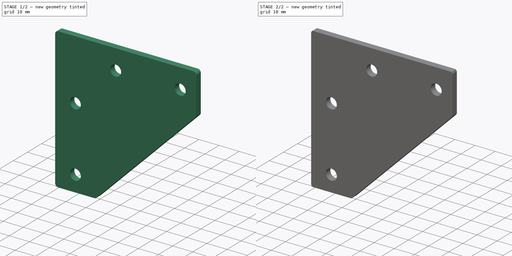
[diagram: build sequence overview — one tinted view per stage of 2, left to right]
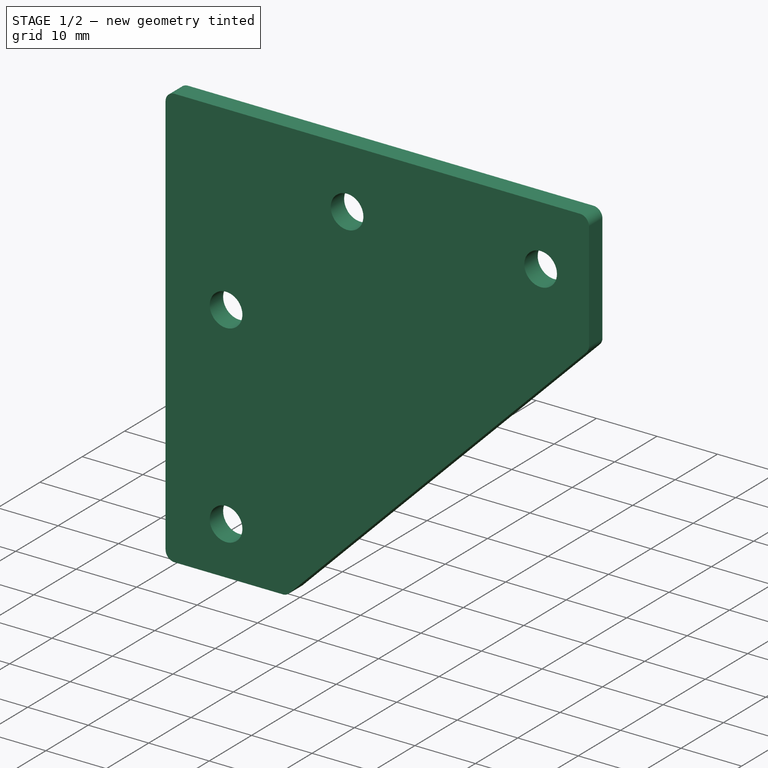
[diagram: stage 1 of 2 — iso view after this stage's code; geometry added in this stage tinted green]
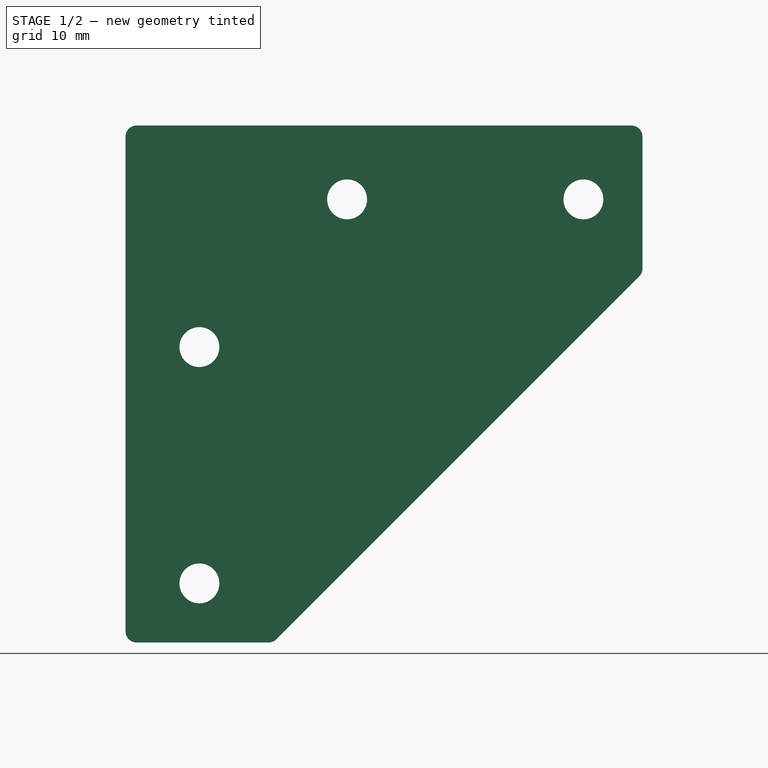
[diagram: stage 1 of 2 — front view after this stage's code; geometry added in this stage tinted green]
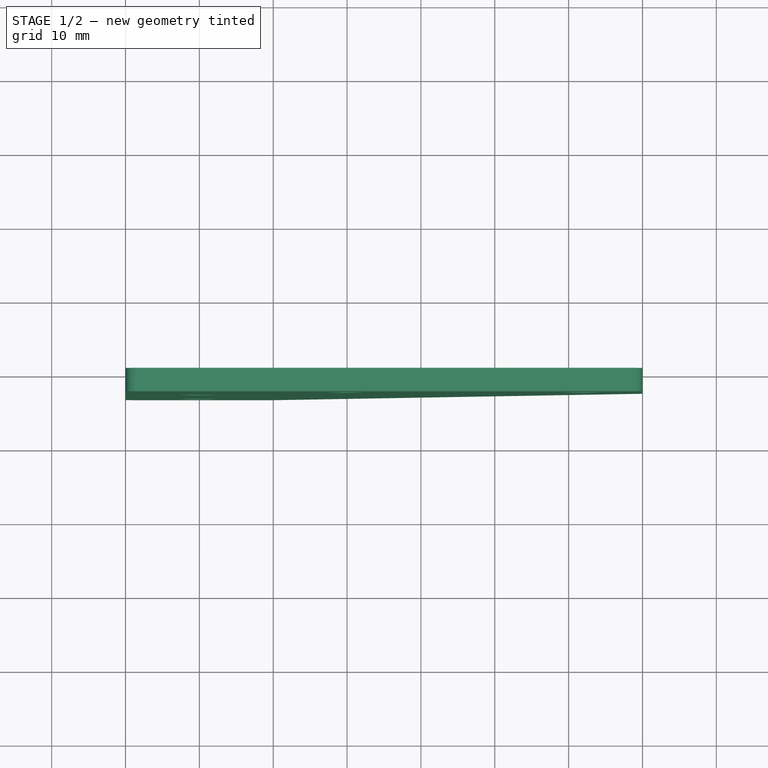
[diagram: stage 1 of 2 — top view after this stage's code; geometry added in this stage tinted green]
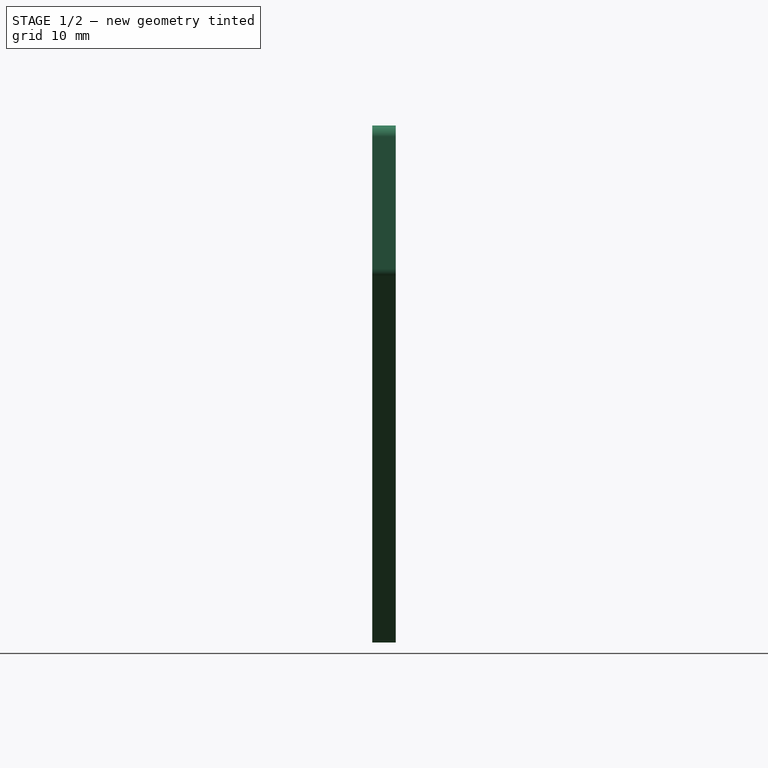
[diagram: stage 1 of 2 — right view after this stage's code; geometry added in this stage tinted green]
FCSTD DOCUMENT  (FreeCAD 0.18R4 (GitTag))
Label: [100065] Sheet Metal, Corner Bracket, Syn1
License: CreativeCommons Attribution-ShareAlike
LicenseURL: http://creativecommons.org/licenses/by-sa/4.0/
objects: Drawing::FeatureView×32, Drawing::FeatureViewPython×9, Drawing::FeatureViewPart×2, Part::FeaturePython×1, Sketcher::SketchObject×1, PartDesign::Pad×1, PartDesign::Fillet×1, PartDesign::Body×1, Drawing::FeaturePage×1
note: 6 computed .brp shape members not serialized (recipe doc carries the construction recipe); baked Part::Feature solids carry a one-line shape summary decoded from their .brp

FEATURE [Sketcher::SketchObject] Sketch
  MapMode = 5
  Placement = pos=(0,0,0) rot=(1,0,0;1.5708rad)
  Support = -> [XZ_Plane]
  sketch-geometry (11):
    g0: LineSegment StartX=0 StartY=70 StartZ=0 EndX=70 EndY=70 EndZ=0
    g1: LineSegment StartX=70 StartY=70 StartZ=0 EndX=70 EndY=50 EndZ=0
    g2: LineSegment StartX=70 StartY=50 StartZ=0 EndX=20 EndY=0 EndZ=0
    g3: LineSegment StartX=20 StartY=0 StartZ=0 EndX=0 EndY=0 EndZ=0
    g4: LineSegment StartX=0 StartY=0 StartZ=0 EndX=0 EndY=70 EndZ=0
    g5: Circle CenterX=30 CenterY=60 CenterZ=0 NormalX=0 NormalY=0 NormalZ=1 AngleXU=0 Radius=2.7
    g6: Circle CenterX=62 CenterY=60 CenterZ=0 NormalX=0 NormalY=0 NormalZ=1 AngleXU=0 Radius=2.7
    g7: Circle CenterX=10 CenterY=40 CenterZ=0 NormalX=0 NormalY=0 NormalZ=1 AngleXU=0 Radius=2.7
    g8: Circle CenterX=10 CenterY=8 CenterZ=0 NormalX=0 NormalY=0 NormalZ=1 AngleXU=0 Radius=2.7
    g9: LineSegment [constr] StartX=62 StartY=60 StartZ=0 EndX=30 EndY=60 EndZ=0
    g10: LineSegment [constr] StartX=10 StartY=40 StartZ=0 EndX=10 EndY=8 EndZ=0
  constraints (30):
    c: PointOnObject(g0,g-2)
    c: Horizontal(g0)
    c: Coincident(g0,g1)
    c: Vertical(g1)
    c: Coincident(g1,g2)
    c: PointOnObject(g2,g-1)
    c: Coincident(g2,g3)
    c: Coincident(g3,g-1)
    c: Coincident(g3,g4)
    c: Coincident(g4,g0)
    c: DistanceY(g4,g4) = 70
    c: Equal(g0,g4)
    c: DistanceY(g1,g1) = 20
    c: DistanceX(g3,g3) = 20
    c: Coincident(g9,g6)
    c: Coincident(g9,g5)
    c: Horizontal(g9)
    c: Coincident(g10,g7)
    c: Coincident(g10,g8)
    c: Vertical(g10)
    c: DistanceX(g7) = 10
    c: DistanceY(g7) = 40
    c: DistanceY(g10,g10) = 32
    c: DistanceX(g0,g5) = 30
    c: DistanceY(g5,g0) = 10
    c: Equal(g9,g10)
    c: Equal(g5,g6)
    c: Equal(g6,g7)
    c: Equal(g7,g8)
    c: Radius(g6) = 2.7
FEATURE [PartDesign::Pad] Pad
  Length = 3.17
  Length2 = 100
  Placement = pos=(0,0,0) rot=(1,0,0;1.5708rad)
  Profile = -> Sketch
  Type = 0
FEATURE [Drawing::FeatureView] dimStack015
  Rotation = 0
  ViewResult = <g> <line x1="227.267000" y1="45.378680" x2="227.267000" y2="37.241451" style="stroke:rgb(0,0,255);stroke-width:0.10" />\n<line x1="230.437000" y1="45.378680" x2="230.437000" y2="37.241451" style="stroke:rgb(0,0,255);stroke-width:0.10" />\n<line x1="227.267000" y1="38.241451" x2="230.437000" y2="38.241451" style="stroke:rgb(0,0,255);stroke-width:0.10" />\n<polygon points="227.267000,38.241451 224.267000,37.241451 223.267000,38.241451 224.267000,39.241451" style="fill:rgb(0,0,255);stroke:rgb(0,0,255);stroke-width:0" />\n<polygon points="230.437000,38.241451 233.437000,39.241451 234.437000,38.241451 233.437000,37.241451" style="fill:rgb(0,0,255);stroke:rgb(0,0,255);stroke-width:0" />\n<text x="228.852000" y="36.241451" font-family="inherit" font-size="3" fill="rgb(0,0,255)" text-anchor="middle"  >3.175</text> </g> 
  Visible = true
  X = 0
  Y = 0
FEATURE [Drawing::FeatureView] centerLines004
  Rotation = 0
  ViewResult = <g transform="scale(1.000000,1.000000)" stroke="rgb(0,0,255)"  stroke-width="0.320000" > <path d="M 113.233300,106.500000 L 113.233300,107.671091 "/>\n<path d="M 113.233300,106.500000 L 114.358736,106.500000 "/>\n<path d="M 113.233300,106.500000 L 113.233300,104.996033 "/>\n<path d="M 113.233300,106.500000 L 111.182105,106.500000 "/> </g> 
  Visible = true
  X = 0
  Y = 0
FEATURE [Drawing::FeatureView] centerLines005
  Rotation = 0
  ViewResult = <g transform="scale(1.000000,1.000000)" stroke="rgb(0,0,255)"  stroke-width="0.320000" > <path d="M 145.233300,106.500000 L 145.233300,108.005473 "/>\n<path d="M 145.233300,106.500000 L 146.626625,106.500000 "/>\n<path d="M 145.233300,106.500000 L 145.233300,104.327268 "/>\n<path d="M 145.233300,106.500000 L 143.784376,106.500000 "/> </g> 
  Visible = true
  X = 0
  Y = 0
FEATURE [Drawing::FeatureView] centerLines008
  Rotation = 0
  ViewResult = <g transform="scale(1.000000,1.000000)" stroke="rgb(0,0,255)"  stroke-width="0.320000" > <path d="M 93.233300,54.500000 L 93.233300,56.343412 "/>\n<path d="M 93.233300,54.500000 L 95.131756,54.500000 "/>\n<path d="M 93.233300,54.500000 L 93.233300,53.166781 "/>\n<path d="M 93.233300,54.500000 L 92.122315,54.500000 "/> </g> 
  Visible = true
  X = 0
  Y = 0
FEATURE [Drawing::FeatureView] centerLines009
  Rotation = 0
  ViewResult = <g transform="scale(1.000000,1.000000)" stroke="rgb(0,0,255)"  stroke-width="0.320000" > <path d="M 93.233300,86.500000 L 93.233300,87.608155 "/>\n<path d="M 93.233300,86.500000 L 94.462991,86.500000 "/>\n<path d="M 93.233300,86.500000 L 93.233300,84.933096 "/>\n<path d="M 93.233300,86.500000 L 91.119168,86.500000 "/> </g> 
  Visible = true
  X = 0
  Y = 0
FEATURE [Drawing::FeatureView] centerLines010
  Rotation = 0
  ViewResult = <g transform="scale(1.000000,1.000000)" stroke="rgb(0,0,255)"  stroke-width="0.320000" > <path d="M 93.233300,54.500000 L 93.233300,57.500000 M 93.233300,59.500000 L 93.233300,65.500000 M 93.233300,67.500000 L 93.233300,70.500000 M 93.233300,72.500000 L 93.233300,78.500000 M 93.233300,80.500000 L 93.233300,83.500000 M 93.233300,85.500000 L 93.233300,86.772199 "/>\n<path d="M 93.233300,54.500000 L 93.233300,57.500000 M 93.233300,59.500000 L 93.233300,65.500000 M 93.233300,67.500000 L 93.233300,70.500000 M 93.233300,72.500000 L 93.233300,78.500000 M 93.233300,80.500000 L 93.233300,83.500000 M 93.233300,85.500000 L 93.233300,86.437817 "/> </g> 
  Visible = true
  X = 0
  Y = 0
FEATURE [Drawing::FeatureView] centerLines011
  Rotation = 0
  ViewResult = <g transform="scale(1.000000,1.000000)" stroke="rgb(0,0,255)"  stroke-width="0.320000" > <path d="M 113.233300,106.500000 L 116.233300,106.500000 M 118.233300,106.500000 L 124.233300,106.500000 M 126.233300,106.500000 L 129.233300,106.500000 M 131.233300,106.500000 L 137.233300,106.500000 M 139.233300,106.500000 L 142.233300,106.500000 M 144.233300,106.500000 L 144.954714,106.500000 "/>\n<path d="M 113.233300,106.500000 L 116.233300,106.500000 M 118.233300,106.500000 L 124.233300,106.500000 M 126.233300,106.500000 L 129.233300,106.500000 M 131.233300,106.500000 L 137.233300,106.500000 M 139.233300,106.500000 L 142.233300,106.500000 M 144.233300,106.500000 L 144.787523,106.500000 "/> </g> 
  Visible = true
  X = 0
  Y = 0
FEATURE [Drawing::FeatureView] dimText001
  Rotation = 0
  ViewResult = <g> <text x="224.174023" y="32.703034" font-family="inherit" font-size="3" fill="rgb(0,0,0)" text-anchor="inherit" transform="rotate(0.000000 224.174023,32.703034)" >[.125"]</text> </g>
  Visible = true
  X = 0
  Y = 0
FEATURE [Drawing::FeatureView] dimText002
  Rotation = 0
  ViewResult = <g> <text x="170.635992" y="122.900112" font-family="inherit" font-size="3" fill="rgb(0,0,0)" text-anchor="inherit" transform="rotate(0.000000 170.635992,122.900112)" >Notes</text> </g>
  Visible = true
  X = 0
  Y = 0
FEATURE [Drawing::FeatureView] dimText003
  Rotation = 0
  ViewResult = <g> <text x="160.086626" y="126.856124" font-family="inherit" font-size="3" fill="rgb(0,0,0)" text-anchor="inherit" transform="rotate(0.000000 160.086626,126.856124)" >1. Parts must be RoHS compliant</text> </g>
  Visible = true
  X = 0
  Y = 0
FEATURE [Drawing::FeatureView] dimText004
  Rotation = 0
  ViewResult = <g> <text x="160.086626" y="130.284668" font-family="inherit" font-size="3" fill="rgb(0,0,0)" text-anchor="inherit" transform="rotate(0.000000 160.086626,130.284668)" >2. Material: 5052 H-32 Aluminum</text> </g>
  Visible = true
  X = 0
  Y = 0
FEATURE [Drawing::FeatureView] dim001
  Rotation = 0
  ViewResult = <g>  <circle cx ="93.233300" cy ="54.500000" r="0.250000" stroke="none" fill="rgb(0,0,255)" /> \n<line x1="73.541318" y1="37.129981" x2="95.258131" y2="56.286074" style="stroke:rgb(0,0,255);stroke-width:0.10" />\n<polygon points="91.208469,52.713926 89.620167,49.979461 88.208721,50.067890 88.297149,51.479336" style="fill:rgb(0,0,255);stroke:rgb(0,0,255);stroke-width:0" />\n<polygon points="95.258131,56.286074 96.846433,59.020539 98.257879,58.932110 98.169451,57.520664" style="fill:rgb(0,0,255);stroke:rgb(0,0,255);stroke-width:0" />\n<line x1="73.541318" y1="37.129981" x2="63.480290" y2="37.129981" style="stroke:rgb(0,0,255);stroke-width:0.10" />\n<text x="68.510804" y="35.129981" font-family="inherit" font-size="3" fill="rgb(0,0,255)" text-anchor="middle"  >Ø5.40 thru x4</text> </g>
  Visible = true
  X = 0
  Y = 0
FEATURE [PartDesign::Fillet] Fillet
  Base = -> Pad [Edge1,Edge11,Edge8,Edge5,Edge2]
  BaseFeature = -> Pad
  Placement = pos=(0,0,0) rot=(1,0,0;1.5708rad)
  Radius = 1.5
FEATURE [PartDesign::Body] Body
  Group = -> [Sketch,Pad,Fillet]
  Origin = -> Origin
  Tip = -> Fillet
FEATURE [Drawing::FeatureViewPart] Ortho  label="Ortho_0_0"
  Direction = (0,1,0)
  HiddenWidth = 0.15
  LineWidth = 0.35
  Rotation = 90
  ShowHiddenLines = false
  ShowSmoothLines = false
  Source = -> Body
  Tolerance = 0.05
  ViewResult = <g id="Ortho_0_0"\n   transform="rotate(90,83.2333,46.5) translate(83.2333,46.5) scale(1,1)"\n  >\n<g   fill="none"\n   stroke="rgb(0, 0, 0)"\n   stroke-linecap="butt"\n   stroke-linejoin="miter"\n   stroke-width="0.350000"\n   transform="scale(1,-1)"\n  >\n<path id= "1" d=" M 70 1.5 L 70 68.5 " />\n<path d="M70 1.5 A1.5 1.5 0 0 0 68.5 -2.22045e-16" /><path d="M70 68.5 A1.5 1.5 0 0 1 68.5 70" /><path id= "4" d=" M 1.5 0 L 68.5 0 " />\n<path id= "5" d=" M 68.5 70 L 50.6213 70 " />\n<path d="M-2.22045e-16 1.5 A1.5 1.5 0 0 1 1.5 -2.22045e-16" /><path d="M50.6213 70 A1.5 1.5 0 0 1 49.5607 69.5607" /><path id= "8" d=" M 0 19.3787 L 0 1.5 " />\n<path id= "9" d=" M 49.5607 69.5607 L 0.43934 20.4393 " />\n<path d="M0.43934 20.4393 A1.5 1.5 0 0 1 -1.42109e-14 19.3787" /><circle cx ="8" cy ="10" r ="2.7" /><circle cx ="60" cy ="62" r ="2.7" /><circle cx ="40" cy ="10" r ="2.7" /><circle cx ="60" cy ="30" r ="2.7" /></g>\n</g>
  Visible = true
  X = 83.2333
  Y = 46.5
FEATURE [Drawing::FeatureViewPart] Ortho001  label="Ortho_1_0"
  Direction = (1,0,0)
  HiddenWidth = 0.15
  LineWidth = 0.35
  Rotation = 90
  ShowHiddenLines = false
  ShowSmoothLines = false
  Source = -> Body
  Tolerance = 0.05
  ViewResult = <g id="Ortho_1_0"\n   transform="rotate(90,227.267,46.5) translate(227.267,46.5) scale(1,1)"\n  >\n<g   fill="none"\n   stroke="rgb(0, 0, 0)"\n   stroke-linecap="butt"\n   stroke-linejoin="miter"\n   stroke-width="0.350000"\n   transform="scale(1,-1)"\n  >\n<path id= "1" d=" M 70 7.2431e-12 L 70 3.17 " />\n<path d="M70,7.2431e-12 Q69.9953,7.24261e-12 69.9906,7.24212e-12  Q69.9765,7.24066e-12 69.9624,7.2392e-12  Q69.9391,7.23679e-12 69.9158,7.23439e-12  Q69.8836,7.23105e-12 69.8515,7.22772e-12  Q69.8108,7.22351e-12 69.7701,7.21931e-12  Q69.7214,7.21427e-12 69.6727,7.20923e-12  Q69.6167,7.20343e-12 69.5607,7.19764e-12  Q69.4979,7.19115e-12 69.4352,7.18466e-12  Q69.3666,7.17756e-12 69.298,7.17046e-12  Q69.2244,7.16285e-12 69.1508,7.15523e-12  Q68.9972,7.13933e-12 68.8338,7.12242e-12  Q68.6685,7.10533e-12 68.5,7.08789e-12 " /><path id= "3" d=" M 68.5 7.08789e-12 L 50.6213 5.23793e-12 " />\n<path d="M50.6213,5.23793e-12 C50.228,5.19723e-12 49.8382,5.1569e-12 49.5607,5.12818e-12 " /><path id= "5" d=" M 49.5607 5.12818e-12 L 0.43934 4.54597e-14 " />\n<path d="M0.43934,4.54597e-14 C0.160619,1.66197e-14 -0.000830723,-8.59572e-17 -1.42109e-14,-1.41364e-27 " /><path d="M70,3.17 Q69.9953,3.17 69.9906,3.17  Q69.9765,3.17 69.9624,3.17  Q69.9391,3.17 69.9158,3.17  Q69.8836,3.17 69.8515,3.17  Q69.8108,3.17 69.7701,3.17  Q69.7214,3.17 69.6727,3.17  Q69.6167,3.17 69.5607,3.17  Q69.4979,3.17 69.4352,3.17  Q69.3666,3.17 69.298,3.17  Q69.2244,3.17 69.1508,3.17  Q68.9972,3.17 68.8338,3.17  Q68.6685,3.17 68.5,3.17 " /><path id= "8" d=" M 68.5 3.17 L 50.6213 3.17 " />\n<path d="M50.6213,3.17 C50.228,3.17 49.8382,3.17 49.5607,3.17 " /><path id= "10" d=" M 49.5607 3.17 L 0.43934 3.17 " />\n<path d="M0.43934,3.17 C0.160619,3.17 -0.000830723,3.17 -3.42171e-13,3.17 " /><path id= "12" d=" M -1.42109e-14 -1.47044e-27 L -3.4222e-13 3.17 " />\n</g>\n</g>
  Visible = true
  X = 227.267
  Y = 46.5
FEATURE [Drawing::FeatureView] dim002
  Rotation = 0
  ViewResult = <g>  <circle cx ="84.733300" cy ="48.000000" r="0.125000" stroke="none" fill="rgb(0,0,255)" /> \n<line x1="48.151047" y1="38.520837" x2="84.733300" y2="48.000000" style="stroke:rgb(0,0,255);stroke-width:0.25" />\n<polygon points="83.281255,47.623747 81.596031,46.154047 81.345196,47.122077 81.094360,48.090107" style="fill:rgb(0,0,255);stroke:rgb(0,0,255);stroke-width:0" />\n<line x1="48.151047" y1="38.520837" x2="39.122726" y2="38.520837" style="stroke:rgb(0,0,255);stroke-width:0.25" />\n<text x="43.636886" y="36.520837" font-family="inherit" font-size="3" fill="rgb(0,0,255)" text-anchor="middle"  >5X R1.5</text> </g>
  Visible = true
  X = 0
  Y = 0
FEATURE [Drawing::FeatureView] dimStack002
  Rotation = 0
  ViewResult = <g> <line x1="149.733299" y1="97.121320" x2="64.831509" y2="97.121320" style="stroke:rgb(0,0,255);stroke-width:0.25" />\n<line x1="149.733299" y1="116.500000" x2="64.831509" y2="116.500000" style="stroke:rgb(0,0,255);stroke-width:0.25" />\n<line x1="65.831509" y1="97.121320" x2="65.831509" y2="116.500000" style="stroke:rgb(0,0,255);stroke-width:0.25" />\n<polygon points="65.831509,97.121320 64.831509,99.121320 65.831509,99.121320 66.831509,99.121320" style="fill:rgb(0,0,255);stroke:rgb(0,0,255);stroke-width:0" />\n<polygon points="65.831509,116.500000 66.831509,114.500000 65.831509,114.500000 64.831509,114.500000" style="fill:rgb(0,0,255);stroke:rgb(0,0,255);stroke-width:0" />\n<text x="63.831509" y="106.810660" font-family="inherit" font-size="3" fill="rgb(0,0,255)" text-anchor="middle" transform="rotate(-90.000000 63.831509,106.810660)" >19.4 </text> </g> 
  Visible = true
  X = 0
  Y = 0
FEATURE [Drawing::FeatureView] dimStack008
  Rotation = 0
  ViewResult = <g> <line x1="82.733300" y1="116.500000" x2="58.779740" y2="116.500000" style="stroke:rgb(0,0,255);stroke-width:0.25" />\n<line x1="88.533299" y1="86.500000" x2="58.779740" y2="86.500000" style="stroke:rgb(0,0,255);stroke-width:0.25" />\n<line x1="59.779740" y1="116.500000" x2="59.779740" y2="86.500000" style="stroke:rgb(0,0,255);stroke-width:0.25" />\n<polygon points="59.779740,116.500000 60.779740,114.500000 59.779740,114.500000 58.779740,114.500000" style="fill:rgb(0,0,255);stroke:rgb(0,0,255);stroke-width:0" />\n<polygon points="59.779740,86.500000 58.779740,88.500000 59.779740,88.500000 60.779740,88.500000" style="fill:rgb(0,0,255);stroke:rgb(0,0,255);stroke-width:0" />\n<text x="57.779740" y="101.500000" font-family="inherit" font-size="3" fill="rgb(0,0,255)" text-anchor="middle" transform="rotate(-90.000000 57.779740,101.500000)" >30.0 </text> </g> 
  Visible = true
  X = 0
  Y = 0
FEATURE [Drawing::FeatureView] dimStack009
  Rotation = 0
  ViewResult = <g> <line x1="82.733300" y1="116.500000" x2="52.625943" y2="116.500000" style="stroke:rgb(0,0,255);stroke-width:0.25" />\n<line x1="88.533299" y1="54.500000" x2="52.625943" y2="54.500000" style="stroke:rgb(0,0,255);stroke-width:0.25" />\n<line x1="53.625943" y1="116.500000" x2="53.625943" y2="54.500000" style="stroke:rgb(0,0,255);stroke-width:0.25" />\n<polygon points="53.625943,116.500000 54.625943,114.500000 53.625943,114.500000 52.625943,114.500000" style="fill:rgb(0,0,255);stroke:rgb(0,0,255);stroke-width:0" />\n<polygon points="53.625943,54.500000 52.625943,56.500000 53.625943,56.500000 54.625943,56.500000" style="fill:rgb(0,0,255);stroke:rgb(0,0,255);stroke-width:0" />\n<text x="51.625943" y="85.500000" font-family="inherit" font-size="3" fill="rgb(0,0,255)" text-anchor="middle" transform="rotate(-90.000000 51.625943,85.500000)" >62.0 </text> </g> 
  Visible = true
  X = 0
  Y = 0
FEATURE [Drawing::FeatureView] dimStack010
  Rotation = 0
  ViewResult = <g> <line x1="82.733300" y1="116.500000" x2="46.472146" y2="116.500000" style="stroke:rgb(0,0,255);stroke-width:0.25" />\n<line x1="81.233299" y1="48.000000" x2="46.472146" y2="48.000000" style="stroke:rgb(0,0,255);stroke-width:0.25" />\n<line x1="47.472146" y1="116.500000" x2="47.472146" y2="48.000000" style="stroke:rgb(0,0,255);stroke-width:0.25" />\n<polygon points="47.472146,116.500000 48.472146,114.500000 47.472146,114.500000 46.472146,114.500000" style="fill:rgb(0,0,255);stroke:rgb(0,0,255);stroke-width:0" />\n<polygon points="47.472146,48.000000 46.472146,50.000000 47.472146,50.000000 48.472146,50.000000" style="fill:rgb(0,0,255);stroke:rgb(0,0,255);stroke-width:0" />\n<text x="45.472146" y="82.250000" font-family="inherit" font-size="3" fill="rgb(0,0,255)" text-anchor="middle" transform="rotate(-90.000000 45.472146,82.250000)" >2X 68.5 </text> </g> 
  Visible = true
  X = 0
  Y = 0
FEATURE [Drawing::FeatureView] dimStack001
  Rotation = 0
  ViewResult = <g> <line x1="83.233300" y1="117.000000" x2="83.233300" y2="123.856156" style="stroke:rgb(0,0,255);stroke-width:0.25" />\n<line x1="93.233300" y1="91.200001" x2="93.233300" y2="123.856156" style="stroke:rgb(0,0,255);stroke-width:0.25" />\n<line x1="83.233300" y1="122.856156" x2="93.233300" y2="122.856156" style="stroke:rgb(0,0,255);stroke-width:0.25" />\n<polygon points="83.233300,122.856156 85.233300,123.856156 85.233300,122.856156 85.233300,121.856156" style="fill:rgb(0,0,255);stroke:rgb(0,0,255);stroke-width:0" />\n<polygon points="93.233300,122.856156 91.233300,121.856156 91.233300,122.856156 91.233300,123.856156" style="fill:rgb(0,0,255);stroke:rgb(0,0,255);stroke-width:0" />\n<text x="88.233300" y="120.856156" font-family="inherit" font-size="3" fill="rgb(0,0,255)" text-anchor="middle" transform="rotate(0.000000 88.233300,120.856156)" >10.0 </text> </g> 
  Visible = true
  X = 0
  Y = 0
FEATURE [Drawing::FeatureView] dimStack003
  Rotation = 0
  ViewResult = <g> <line x1="82.733300" y1="116.500000" x2="75.043345" y2="116.500000" style="stroke:rgb(0,0,255);stroke-width:0.25" />\n<line x1="108.533299" y1="106.500000" x2="75.043345" y2="106.500000" style="stroke:rgb(0,0,255);stroke-width:0.25" />\n<line x1="76.043345" y1="116.500000" x2="76.043345" y2="106.500000" style="stroke:rgb(0,0,255);stroke-width:0.25" />\n<polygon points="76.043345,116.500000 77.043345,114.500000 76.043345,114.500000 75.043345,114.500000" style="fill:rgb(0,0,255);stroke:rgb(0,0,255);stroke-width:0" />\n<polygon points="76.043345,106.500000 75.043345,108.500000 76.043345,108.500000 77.043345,108.500000" style="fill:rgb(0,0,255);stroke:rgb(0,0,255);stroke-width:0" />\n<text x="74.043345" y="111.500000" font-family="inherit" font-size="3" fill="rgb(0,0,255)" text-anchor="middle" transform="rotate(-90.000000 74.043345,111.500000)" >10.0 </text> </g> 
  Visible = true
  X = 0
  Y = 0
FEATURE [Drawing::FeatureView] dimStack004
  Rotation = 0
  ViewResult = <g> <line x1="83.233300" y1="117.000000" x2="83.233300" y2="136.163749" style="stroke:rgb(0,0,255);stroke-width:0.25" />\n<line x1="113.233300" y1="111.200001" x2="113.233300" y2="136.163749" style="stroke:rgb(0,0,255);stroke-width:0.25" />\n<line x1="83.233300" y1="135.163749" x2="113.233300" y2="135.163749" style="stroke:rgb(0,0,255);stroke-width:0.25" />\n<polygon points="83.233300,135.163749 85.233300,136.163749 85.233300,135.163749 85.233300,134.163749" style="fill:rgb(0,0,255);stroke:rgb(0,0,255);stroke-width:0" />\n<polygon points="113.233300,135.163749 111.233300,134.163749 111.233300,135.163749 111.233300,136.163749" style="fill:rgb(0,0,255);stroke:rgb(0,0,255);stroke-width:0" />\n<text x="98.233300" y="133.163749" font-family="inherit" font-size="3" fill="rgb(0,0,255)" text-anchor="middle" transform="rotate(0.000000 98.233300,133.163749)" >30.0 </text> </g> 
  Visible = true
  X = 0
  Y = 0
FEATURE [Drawing::FeatureView] dimStack011
  Rotation = 0
  ViewResult = <g> <line x1="83.233300" y1="117.000000" x2="83.233300" y2="143.855995" style="stroke:rgb(0,0,255);stroke-width:0.25" />\n<line x1="145.233300" y1="111.200001" x2="145.233300" y2="143.855995" style="stroke:rgb(0,0,255);stroke-width:0.25" />\n<line x1="83.233300" y1="142.855995" x2="145.233300" y2="142.855995" style="stroke:rgb(0,0,255);stroke-width:0.25" />\n<polygon points="83.233300,142.855995 85.233300,143.855995 85.233300,142.855995 85.233300,141.855995" style="fill:rgb(0,0,255);stroke:rgb(0,0,255);stroke-width:0" />\n<polygon points="145.233300,142.855995 143.233300,141.855995 143.233300,142.855995 143.233300,143.855995" style="fill:rgb(0,0,255);stroke:rgb(0,0,255);stroke-width:0" />\n<text x="114.233300" y="140.855995" font-family="inherit" font-size="3" fill="rgb(0,0,255)" text-anchor="middle" transform="rotate(0.000000 114.233300,140.855995)" >62.0 </text> </g> 
  Visible = true
  X = 0
  Y = 0
FEATURE [Drawing::FeatureView] dimStack005
  Rotation = 0
  ViewResult = <g> <line x1="83.233300" y1="117.000000" x2="83.233300" y2="150.449349" style="stroke:rgb(0,0,255);stroke-width:0.25" />\n<line x1="151.733300" y1="117.000001" x2="151.733300" y2="150.449349" style="stroke:rgb(0,0,255);stroke-width:0.25" />\n<line x1="83.233300" y1="149.449349" x2="151.733300" y2="149.449349" style="stroke:rgb(0,0,255);stroke-width:0.25" />\n<polygon points="83.233300,149.449349 85.233300,150.449349 85.233300,149.449349 85.233300,148.449349" style="fill:rgb(0,0,255);stroke:rgb(0,0,255);stroke-width:0" />\n<polygon points="151.733300,149.449349 149.733300,148.449349 149.733300,149.449349 149.733300,150.449349" style="fill:rgb(0,0,255);stroke:rgb(0,0,255);stroke-width:0" />\n<text x="117.483300" y="147.449349" font-family="inherit" font-size="3" fill="rgb(0,0,255)" text-anchor="middle"  >2X 68.5 </text> </g> 
  Visible = true
  X = 0
  Y = 0
FEATURE [Drawing::FeatureView] dimStack007
  Rotation = 0
  ViewResult = <g> <line x1="83.233300" y1="117.000000" x2="83.233300" y2="156.603146" style="stroke:rgb(0,0,255);stroke-width:0.25" />\n<line x1="153.233300" y1="117.000000" x2="153.233300" y2="156.603146" style="stroke:rgb(0,0,255);stroke-width:0.25" />\n<line x1="83.233300" y1="155.603146" x2="153.233300" y2="155.603146" style="stroke:rgb(0,0,255);stroke-width:0.25" />\n<polygon points="83.233300,155.603146 85.233300,156.603146 85.233300,155.603146 85.233300,154.603146" style="fill:rgb(0,0,255);stroke:rgb(0,0,255);stroke-width:0" />\n<polygon points="153.233300,155.603146 151.233300,154.603146 151.233300,155.603146 151.233300,156.603146" style="fill:rgb(0,0,255);stroke:rgb(0,0,255);stroke-width:0" />\n<text x="118.233300" y="153.603146" font-family="inherit" font-size="3" fill="rgb(0,0,255)" text-anchor="middle" transform="rotate(0.000000 118.233300,153.603146)" >70.0 </text> </g> 
  Visible = true
  X = 0
  Y = 0
FEATURE [Drawing::FeatureView] dimStack012
  Rotation = 0
  ViewResult = <g> <line x1="82.733300" y1="116.500000" x2="39.878792" y2="116.500000" style="stroke:rgb(0,0,255);stroke-width:0.25" />\n<line x1="82.733300" y1="46.500000" x2="39.878792" y2="46.500000" style="stroke:rgb(0,0,255);stroke-width:0.25" />\n<line x1="40.878792" y1="116.500000" x2="40.878792" y2="46.500000" style="stroke:rgb(0,0,255);stroke-width:0.25" />\n<polygon points="40.878792,116.500000 41.878792,114.500000 40.878792,114.500000 39.878792,114.500000" style="fill:rgb(0,0,255);stroke:rgb(0,0,255);stroke-width:0" />\n<polygon points="40.878792,46.500000 39.878792,48.500000 40.878792,48.500000 41.878792,48.500000" style="fill:rgb(0,0,255);stroke:rgb(0,0,255);stroke-width:0" />\n<text x="38.878792" y="81.500000" font-family="inherit" font-size="3" fill="rgb(0,0,255)" text-anchor="middle" transform="rotate(-90.000000 38.878792,81.500000)" >70.0 </text> </g> 
  Visible = true
  X = 0
  Y = 0
FEATURE [Drawing::FeatureView] dimStack006
  Rotation = 0
  ViewResult = <g> <line x1="83.233300" y1="117.000000" x2="83.233300" y2="130.449509" style="stroke:rgb(0,0,255);stroke-width:0.25" />\n<line x1="102.611940" y1="50.931514" x2="102.611940" y2="130.449509" style="stroke:rgb(0,0,255);stroke-width:0.25" />\n<line x1="83.233300" y1="129.449509" x2="102.611940" y2="129.449509" style="stroke:rgb(0,0,255);stroke-width:0.25" />\n<polygon points="83.233300,129.449509 85.233300,130.449509 85.233300,129.449509 85.233300,128.449509" style="fill:rgb(0,0,255);stroke:rgb(0,0,255);stroke-width:0" />\n<polygon points="102.611940,129.449509 100.611940,128.449509 100.611940,129.449509 100.611940,130.449509" style="fill:rgb(0,0,255);stroke:rgb(0,0,255);stroke-width:0" />\n<text x="92.922620" y="127.449509" font-family="inherit" font-size="3" fill="rgb(0,0,255)" text-anchor="middle" transform="rotate(0.000000 92.922620,127.449509)" >19.4 </text> </g> 
  Visible = true
  X = 0
  Y = 0
FEATURE [Drawing::FeatureView] dimLine001
  Rotation = 0
  ViewResult = <g   >\n<line x1="166.592068" y1="91.427837" x2="147.933300" y2="106.500000" style="stroke:rgb(0,0,255);stroke-width:0.25" />\n<polygon points="147.933300,106.500000 150.117494,106.021152 149.489116,105.243244 148.860738,104.465336" style="fill:rgb(0,0,255);stroke:rgb(0,0,255);stroke-width:0" />\n<line x1="166.592068" y1="91.427837" x2="185.273237" y2="91.427837" style="stroke:rgb(0,0,255);stroke-width:0.25" />\n</g> 
  Visible = true
  X = 0
  Y = 0
FEATURE [Drawing::FeatureView] dimLine002
  Rotation = 0
  ViewResult = <g   >\n<line x1="166.372290" y1="91.427837" x2="115.933300" y2="106.500000" style="stroke:rgb(0,0,255);stroke-width:0.25" />\n<polygon points="115.933300,106.500000 118.135884,106.885517 117.849574,105.927380 117.563264,104.969243" style="fill:rgb(0,0,255);stroke:rgb(0,0,255);stroke-width:0" />\n<line x1="166.372290" y1="91.427837" x2="166.372290" y2="91.427837" style="stroke:rgb(0,0,255);stroke-width:0.25" />\n</g> 
  Visible = true
  X = 0
  Y = 0
FEATURE [Drawing::FeatureView] dimText010
  Rotation = 0
  ViewResult = <g> <text x="165.920482" y="90.283213" font-family="inherit" font-size="3" fill="rgb(0,0,0)" text-anchor="inherit" transform="rotate(0.000000 165.920482,90.283213)" >Hang here for powder coating</text> </g>
  Visible = true
  X = 0
  Y = 0
FEATURE [Drawing::FeatureView] dimText009
  Rotation = 0
  ViewResult = <g> <text x="159.822892" y="146.899919" font-family="inherit" font-size="3" fill="rgb(0,0,0)" text-anchor="inherit" transform="rotate(0.000000 159.822892,146.899919)" >6. Edge break no greater than R1mm</text> </g>
  Visible = true
  X = 0
  Y = 0
FEATURE [Drawing::FeatureView] dimText008
  Rotation = 0
  ViewResult = <g> <text x="159.822892" y="143.471375" font-family="inherit" font-size="3" fill="rgb(0,0,0)" text-anchor="inherit" transform="rotate(0.000000 159.822892,143.471375)" >5. Break all sharp edges </text> </g>
  Visible = true
  X = 0
  Y = 0
FEATURE [Drawing::FeatureView] dimText005
  Rotation = 0
  ViewResult = <g> <text x="160.086626" y="133.713211" font-family="inherit" font-size="3" fill="rgb(0,0,0)" text-anchor="inherit" transform="rotate(0.000000 160.086626,133.713211)" >3. Parts must be free of oil and debris</text> </g>
  Visible = true
  X = 0
  Y = 0
FEATURE [Drawing::FeatureView] dimText006
  Rotation = 0
  ViewResult = <g> <text x="159.822892" y="136.878021" font-family="inherit" font-size="3" fill="rgb(0,0,0)" text-anchor="inherit" transform="rotate(0.000000 159.822892,136.878021)" >4. Part is to be powder coated with Cardinal color</text> </g>
  Visible = true
  X = 0
  Y = 0
FEATURE [Drawing::FeatureViewPython] text001  # drawing view (typed FeaturePython)
  Rotation = 0
  ViewResult = <g> <text x="163.659703" y="140.353191" font-family="inherit" font-size="3" fill="rgb(0,0,0)" text-anchor="inherit" transform="rotate(0.000000 163.659703,140.353191)" >X041-BLV00333.50</text> </g>
  Visible = true
  X = 0
  Y = 0
  click1_x = 163.66
  click1_y = 140.353
  rotation = 0
  text = X041-BLV00333.50
  textRenderer_addText_color = rgb(0,0,0)
  textRenderer_addText_family = inherit
  textRenderer_addText_size = 3
FEATURE [Drawing::FeatureViewPython] text002  # drawing view (typed FeaturePython)
  Rotation = 0
  ViewResult = <g> <text x="6.382751" y="178.153855" font-family="inherit" font-size="3" fill="rgb(0,0,0)" text-anchor="inherit" transform="rotate(0.000000 6.382751,178.153855)" >REV</text> </g>
  Visible = true
  X = 0
  Y = 0
  click1_x = 6.38275
  click1_y = 178.154
  rotation = 0
  text = REV
  textRenderer_addText_color = rgb(0,0,0)
  textRenderer_addText_family = inherit
  textRenderer_addText_size = 3
FEATURE [Drawing::FeatureViewPython] text003  # drawing view (typed FeaturePython)
  Rotation = 0
  ViewResult = <g> <text x="15.769150" y="178.341583" font-family="inherit" font-size="3" fill="rgb(0,0,0)" text-anchor="inherit" transform="rotate(0.000000 15.769150,178.341583)" >DATE</text> </g>
  Visible = true
  X = 0
  Y = 0
  click1_x = 15.7692
  click1_y = 178.342
  rotation = 0
  text = DATE
  textRenderer_addText_color = rgb(0,0,0)
  textRenderer_addText_family = inherit
  textRenderer_addText_size = 3
FEATURE [Drawing::FeatureViewPython] text004  # drawing view (typed FeaturePython)
  Rotation = 0
  ViewResult = <g> <text x="35.292861" y="178.153855" font-family="inherit" font-size="3" fill="rgb(0,0,0)" text-anchor="inherit" transform="rotate(0.000000 35.292861,178.153855)" >BY</text> </g>
  Visible = true
  X = 0
  Y = 0
  click1_x = 35.2929
  click1_y = 178.154
  rotation = 0
  text = BY
  textRenderer_addText_color = rgb(0,0,0)
  textRenderer_addText_family = inherit
  textRenderer_addText_size = 3
FEATURE [Drawing::FeatureViewPython] text005  # drawing view (typed FeaturePython)
  Rotation = 0
  ViewResult = <g> <text x="51.249739" y="178.153855" font-family="inherit" font-size="3" fill="rgb(0,0,0)" text-anchor="inherit" transform="rotate(0.000000 51.249739,178.153855)" >NOTES</text> </g>
  Visible = true
  X = 0
  Y = 0
  click1_x = 51.2497
  click1_y = 178.154
  rotation = 0
  text = NOTES
  textRenderer_addText_color = rgb(0,0,0)
  textRenderer_addText_family = inherit
  textRenderer_addText_size = 3
FEATURE [Drawing::FeatureViewPython] text006  # drawing view (typed FeaturePython)
  Rotation = 0
  ViewResult = <g> <text x="8.260031" y="182.096142" font-family="inherit" font-size="3" fill="rgb(0,0,0)" text-anchor="inherit" transform="rotate(0.000000 8.260031,182.096142)" >A</text> </g>
  Visible = true
  X = 0
  Y = 0
  click1_x = 8.26003
  click1_y = 182.096
  rotation = 0
  text = A
  textRenderer_addText_color = rgb(0,0,0)
  textRenderer_addText_family = inherit
  textRenderer_addText_size = 3
FEATURE [Drawing::FeatureViewPython] text007  # drawing view (typed FeaturePython)
  Rotation = 0
  ViewResult = <g> <text x="13.891871" y="182.096142" font-family="inherit" font-size="3" fill="rgb(0,0,0)" text-anchor="inherit" transform="rotate(0.000000 13.891871,182.096142)" >03/12/2020</text> </g>
  Visible = true
  X = 0
  Y = 0
  click1_x = 13.8919
  click1_y = 182.096
  rotation = 0
  text = 03/12/2020
  textRenderer_addText_color = rgb(0,0,0)
  textRenderer_addText_family = inherit
  textRenderer_addText_size = 3
FEATURE [Drawing::FeatureViewPython] text008  # drawing view (typed FeaturePython)
  Rotation = 0
  ViewResult = <g> <text x="33.603309" y="182.096142" font-family="inherit" font-size="3" fill="rgb(0,0,0)" text-anchor="inherit" transform="rotate(0.000000 33.603309,182.096142)" >WEST</text> </g>
  Visible = true
  X = 0
  Y = 0
  click1_x = 33.6033
  click1_y = 182.096
  rotation = 0
  text = WEST
  textRenderer_addText_color = rgb(0,0,0)
  textRenderer_addText_family = inherit
  textRenderer_addText_size = 3
FEATURE [Drawing::FeatureViewPython] text009  # drawing view (typed FeaturePython)
  Rotation = 0
  ViewResult = <g> <text x="49.372459" y="181.908414" font-family="inherit" font-size="3" fill="rgb(0,0,0)" text-anchor="inherit" transform="rotate(0.000000 49.372459,181.908414)" >Update powder coat</text> </g>
  Visible = true
  X = 0
  Y = 0
  click1_x = 49.3725
  click1_y = 181.908
  rotation = 0
  text = Update powder coat
  textRenderer_addText_color = rgb(0,0,0)
  textRenderer_addText_family = inherit
  textRenderer_addText_size = 3
FEATURE [Drawing::FeaturePage] Page
  EditableTexts = West | 01/14/2020 | CHECKED | XX/XX/XXXX | Corner Bracket | XX-XXXXXX | 5052 H-32 Aluminum | A | 1 OF 1
  Group = -> [Ortho,Ortho001,dimStack015,centerLines004,centerLines005,centerLines008,centerLines009,centerLines010,centerLines011,dimText001,dimText002,dimText003,dimText004,dimText005,dimText006,dimText008,dimText009,dim001,dimText010,dim002,dimStack002,dimStack008,dimStack009,dimStack010,dimStack001,dimStack003,dimStack004,dimStack011,dimStack005,dimStack007,dimStack012,dimStack006,dimLine001,dimLine002,+9 more]
  Template = <userpath>/Desktop/drawing templates/A4_Page1_attribution.svg
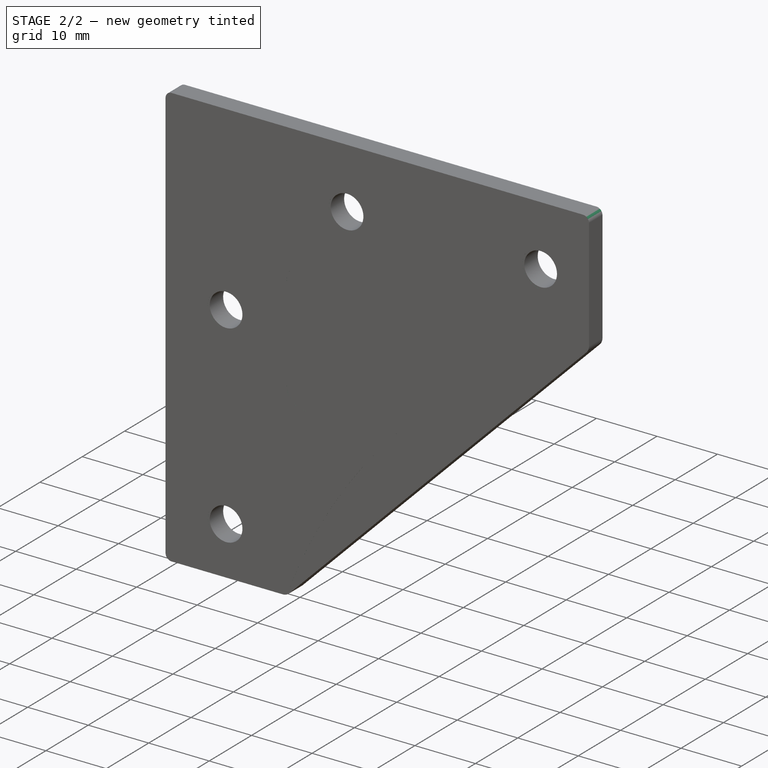
[diagram: stage 2 of 2 — iso view after this stage's code; geometry added in this stage tinted green]
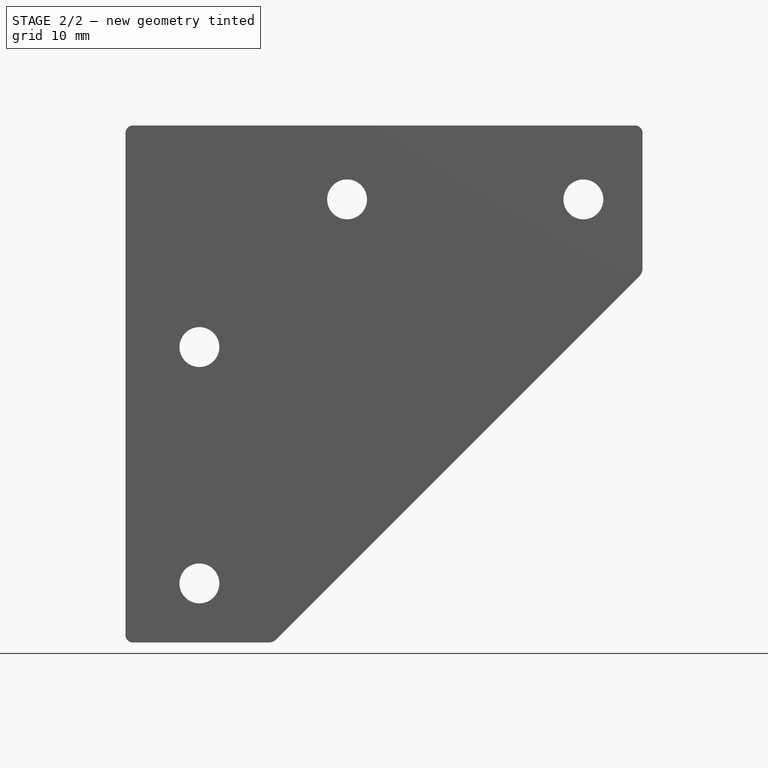
[diagram: stage 2 of 2 — front view after this stage's code; geometry added in this stage tinted green]
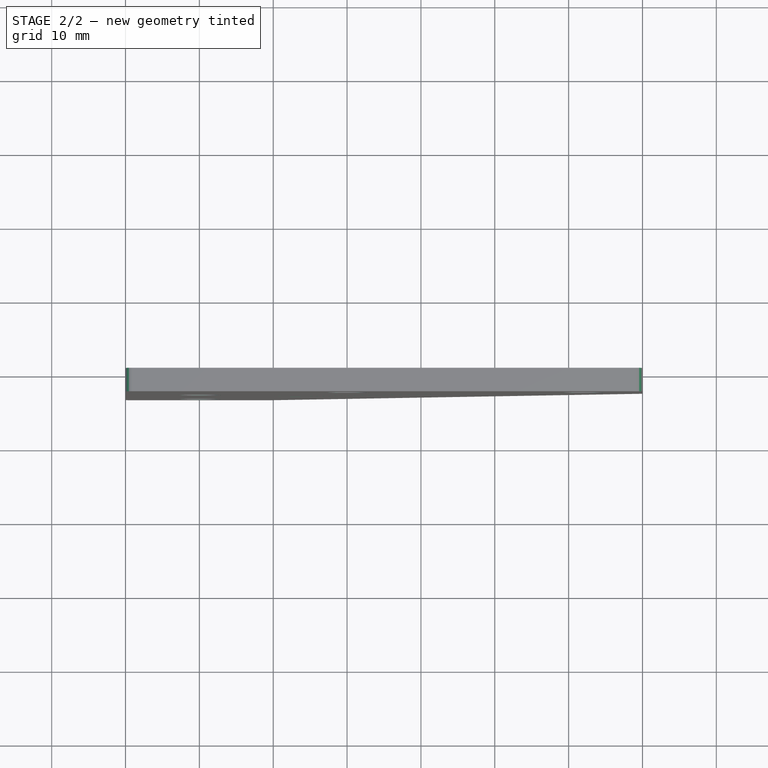
[diagram: stage 2 of 2 — top view after this stage's code; geometry added in this stage tinted green]
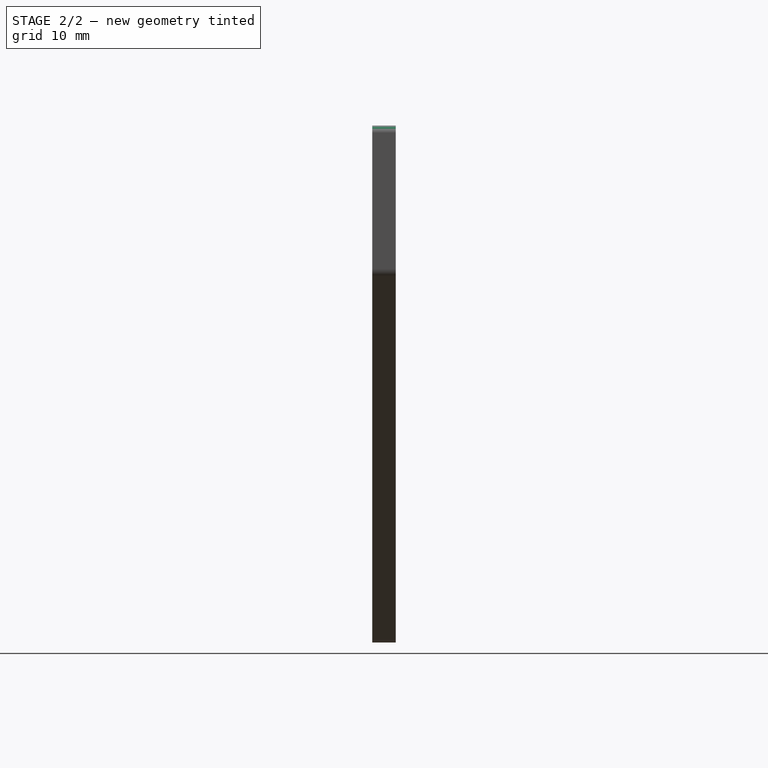
[diagram: stage 2 of 2 — right view after this stage's code; geometry added in this stage tinted green]
FEATURE [Part::FeaturePython] corner_bracket_v2_0_PP_MP0106_step1_01  # a2plus imported part (geometry in sourceFile) (typed FeaturePython)
  Placement = pos=(0,0,0) rot=(1,0,0;1.5708rad)
  fixedPosition = true
  sourceFile = <userpath>/Projects/taz-quiver/Production_parts/Machined_parts/corner_bracket_v2.0/corner_bracket_v2.0_PP-MP0106.step
  timeLastImport = 1.52227e+09
  updateColors = true
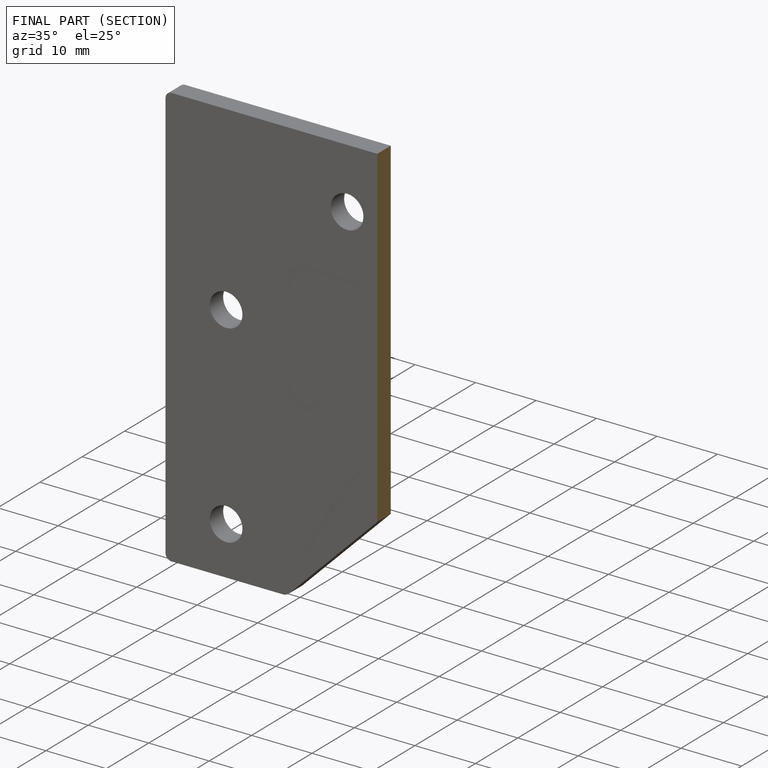
[diagram: finished part — half-section view (interior)]
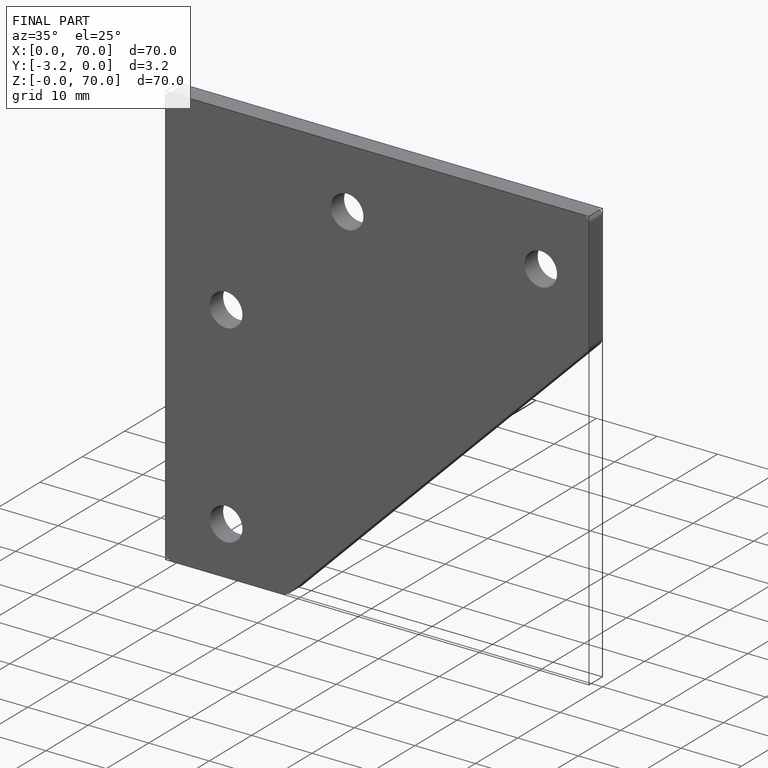
[diagram: finished part — iso view with bounding-box wireframe]
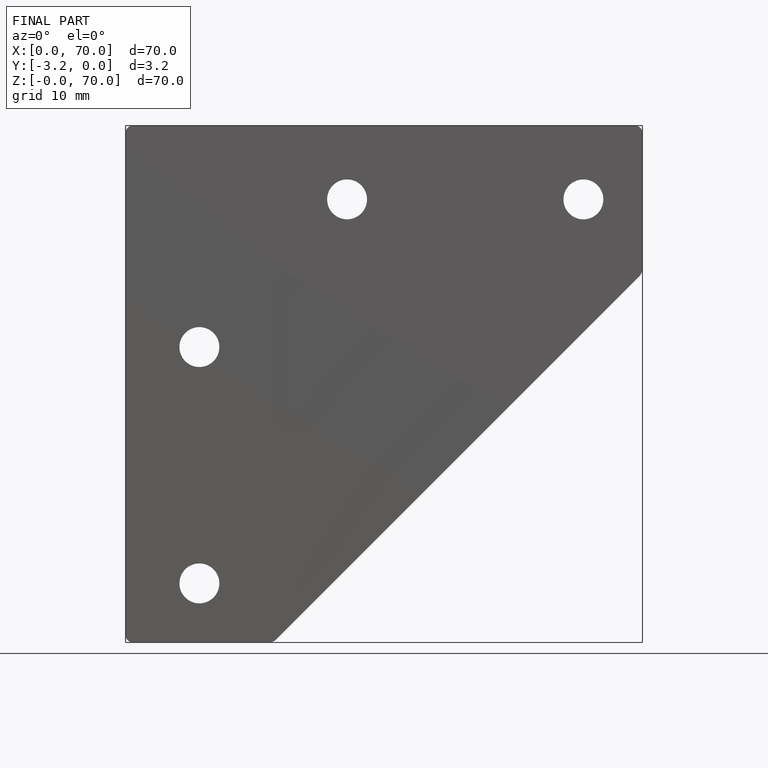
[diagram: finished part — front view with bounding-box wireframe]
